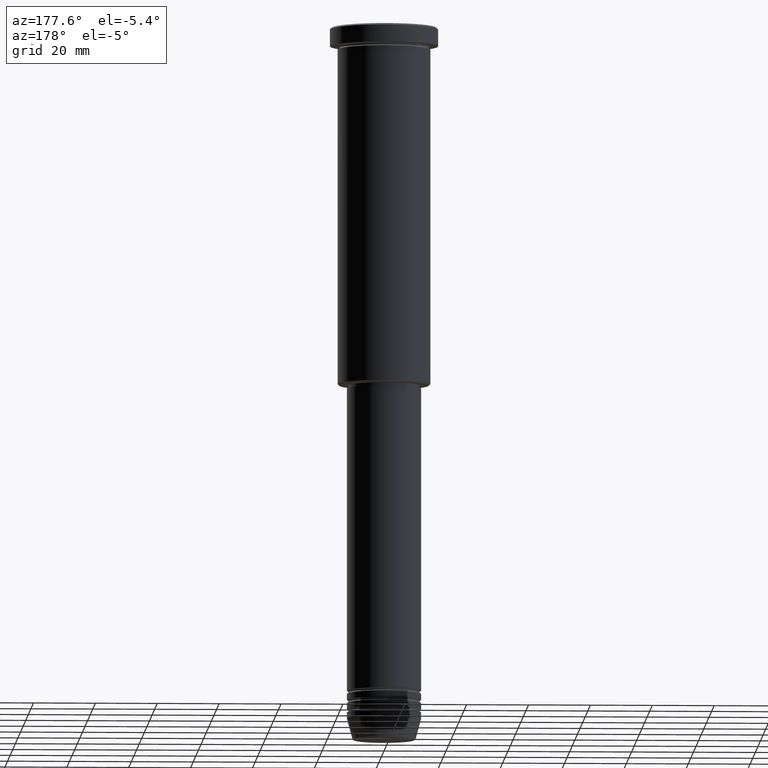
[diagram: clean part render]
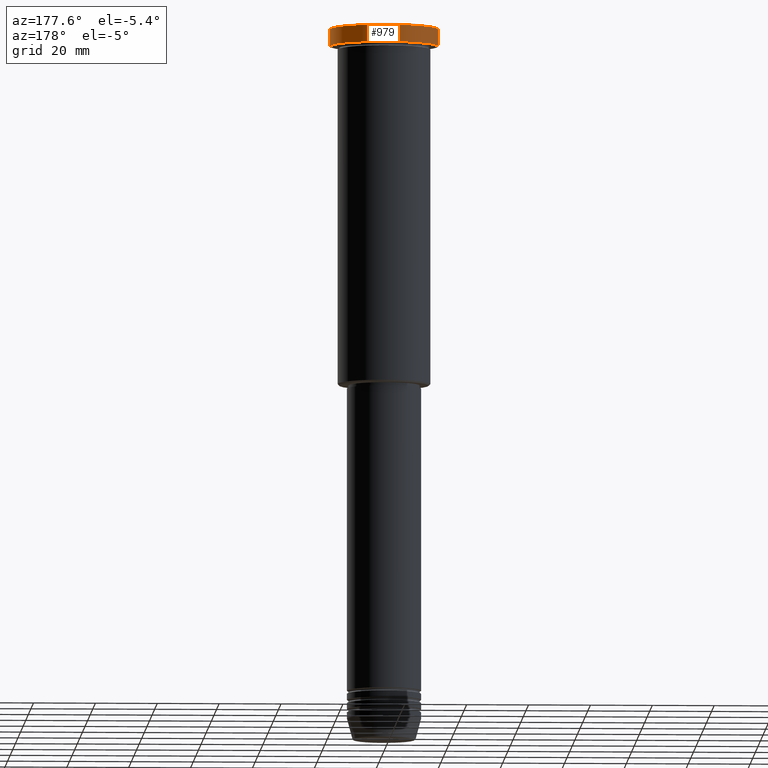
[diagram: same view with one face highlighted and labeled with its STEP entity id]
A machine part, auxiliary view. The second image highlights one B-rep face of the part: STEP entity #979.
In plain terms, the highlighted cylindrical surface (partial cylindrical patch) has radius 17.5 mm, axis along (-0, -0, 1).
Its self-contained STEP definition (entity closure, byte-faithful):
#31 = CARTESIAN_POINT ( 'NONE',  ( 17.50000000000000000, 0.000000000000000000, 0.000000000000000000 ) ) ;
#61 = CARTESIAN_POINT ( 'NONE',  ( 17.50000000000000000, 0.000000000000000000, -0.5000000000000559552 ) ) ;
#76 = ORIENTED_EDGE ( 'NONE', *, *, #933, .T. ) ;
#173 = DIRECTION ( 'NONE',  ( 0.000000000000000000, 0.000000000000000000, -1.000000000000000000 ) ) ;
#196 = CARTESIAN_POINT ( 'NONE',  ( 0.000000000000000000, 0.000000000000000000, 0.000000000000000000 ) ) ;
#282 = FACE_OUTER_BOUND ( 'NONE', #1089, .T. ) ;
#357 = DIRECTION ( 'NONE',  ( 1.000000000000000000, 0.000000000000000000, 0.000000000000000000 ) ) ;
#359 = VECTOR ( 'NONE', #515, 1000.000000000000000 ) ;
#399 = VERTEX_POINT ( 'NONE', #61 ) ;
#407 = AXIS2_PLACEMENT_3D ( 'NONE', #564, #1111, #357 ) ;
#420 = LINE ( 'NONE', #605, #359 ) ;
#427 = CARTESIAN_POINT ( 'NONE',  ( -17.50000000000000000, 2.143131898507868248E-15, -0.5000000000000559552 ) ) ;
#496 = ORIENTED_EDGE ( 'NONE', *, *, #589, .T. ) ;
#498 = VERTEX_POINT ( 'NONE', #838 ) ;
#503 = EDGE_CURVE ( 'NONE', #734, #399, #854, .T. ) ;
#507 = VERTEX_POINT ( 'NONE', #427 ) ;
#515 = DIRECTION ( 'NONE',  ( -0.000000000000000000, -0.000000000000000000, 1.000000000000000000 ) ) ;
#542 = CIRCLE ( 'NONE', #407, 17.50000000000000000 ) ;
#562 = AXIS2_PLACEMENT_3D ( 'NONE', #701, #173, #1170 ) ;
#563 = DIRECTION ( 'NONE',  ( -0.000000000000000000, -0.000000000000000000, 1.000000000000000000 ) ) ;
#564 = CARTESIAN_POINT ( 'NONE',  ( 0.000000000000000000, 0.000000000000000000, -5.999999999999995559 ) ) ;
#587 = EDGE_CURVE ( 'NONE', #734, #498, #542, .T. ) ;
#589 = EDGE_CURVE ( 'NONE', #498, #507, #420, .T. ) ;
#605 = CARTESIAN_POINT ( 'NONE',  ( -17.50000000000000000, 2.143131898507868248E-15, 0.000000000000000000 ) ) ;
#692 = CIRCLE ( 'NONE', #562, 17.50000000000000000 ) ;
#701 = CARTESIAN_POINT ( 'NONE',  ( 0.000000000000000000, 0.000000000000000000, -0.5000000000000559552 ) ) ;
#730 = CYLINDRICAL_SURFACE ( 'NONE', #850, 17.50000000000000000 ) ;
#734 = VERTEX_POINT ( 'NONE', #873 ) ;
#837 = DIRECTION ( 'NONE',  ( 1.000000000000000000, 0.000000000000000000, 0.000000000000000000 ) ) ;
#838 = CARTESIAN_POINT ( 'NONE',  ( -17.50000000000000000, 2.143131898507868248E-15, -5.999999999999995559 ) ) ;
#843 = DIRECTION ( 'NONE',  ( -0.000000000000000000, -0.000000000000000000, 1.000000000000000000 ) ) ;
#850 = AXIS2_PLACEMENT_3D ( 'NONE', #196, #563, #837 ) ;
#854 = LINE ( 'NONE', #31, #956 ) ;
#873 = CARTESIAN_POINT ( 'NONE',  ( 17.50000000000000000, 0.000000000000000000, -5.999999999999995559 ) ) ;
#877 = ORIENTED_EDGE ( 'NONE', *, *, #587, .T. ) ;
#933 = EDGE_CURVE ( 'NONE', #507, #399, #692, .T. ) ;
#956 = VECTOR ( 'NONE', #843, 1000.000000000000000 ) ;
#979 = ADVANCED_FACE ( 'NONE', ( #282 ), #730, .T. ) ;
#1089 = EDGE_LOOP ( 'NONE', ( #877, #496, #76, #1173 ) ) ;
#1111 = DIRECTION ( 'NONE',  ( -0.000000000000000000, -0.000000000000000000, 1.000000000000000000 ) ) ;
#1170 = DIRECTION ( 'NONE',  ( 1.000000000000000000, 0.000000000000000000, 0.000000000000000000 ) ) ;
#1173 = ORIENTED_EDGE ( 'NONE', *, *, #503, .F. ) ;